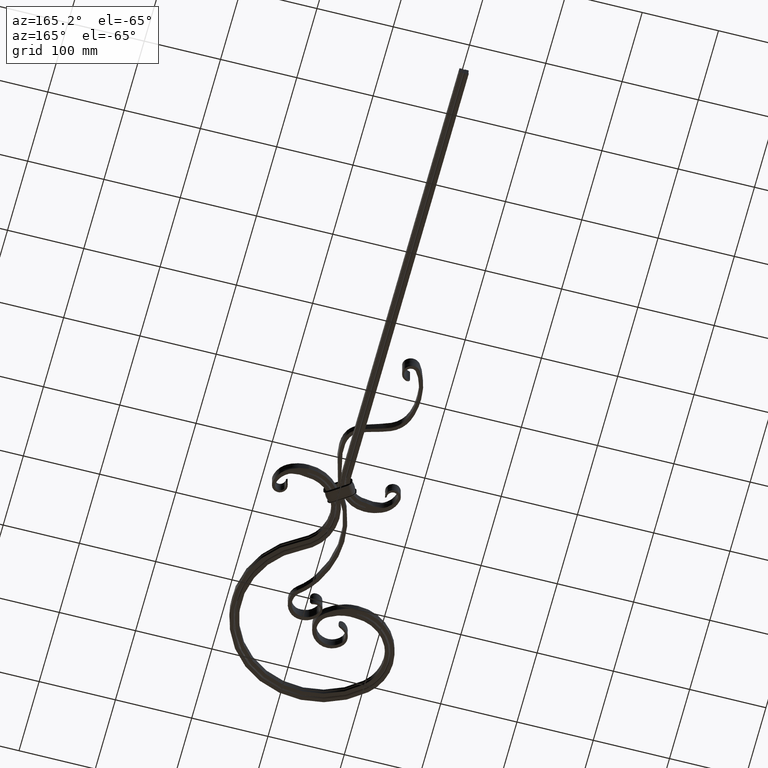
[diagram: clean part render]
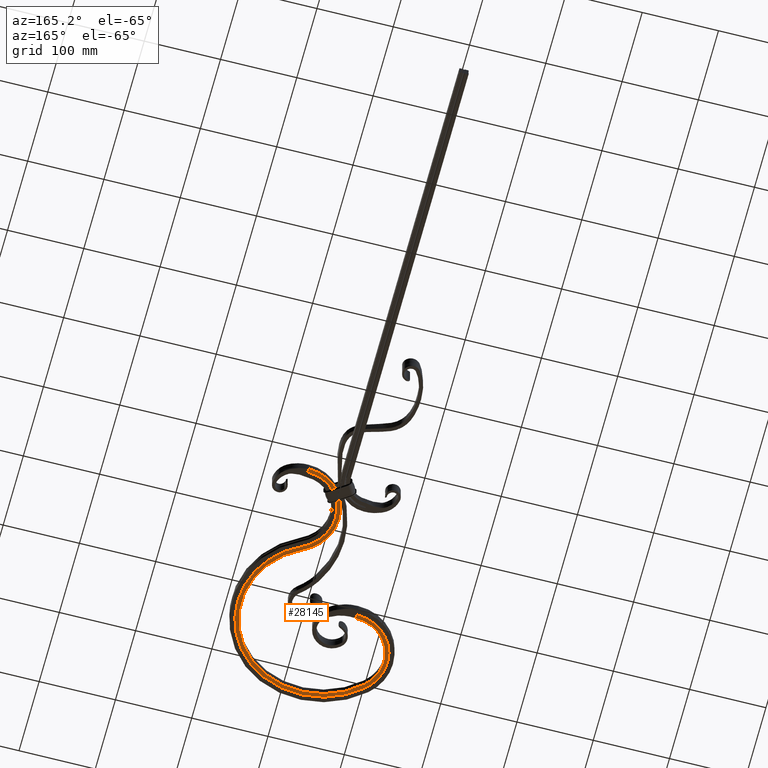
[diagram: same view with one face highlighted and labeled with its STEP entity id]
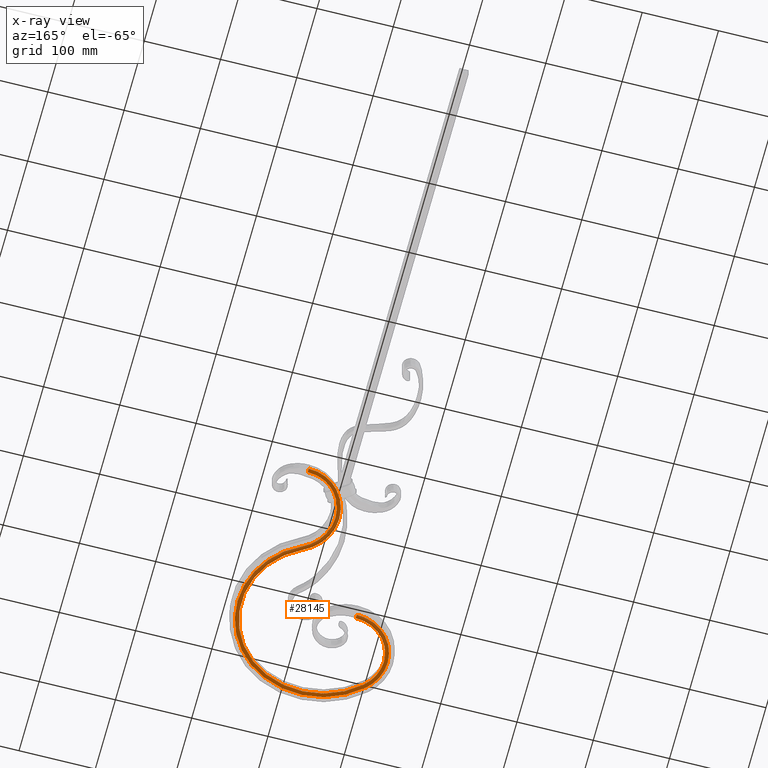
[diagram: x-ray of the same camera — body ghosted, the highlighted face saturated]
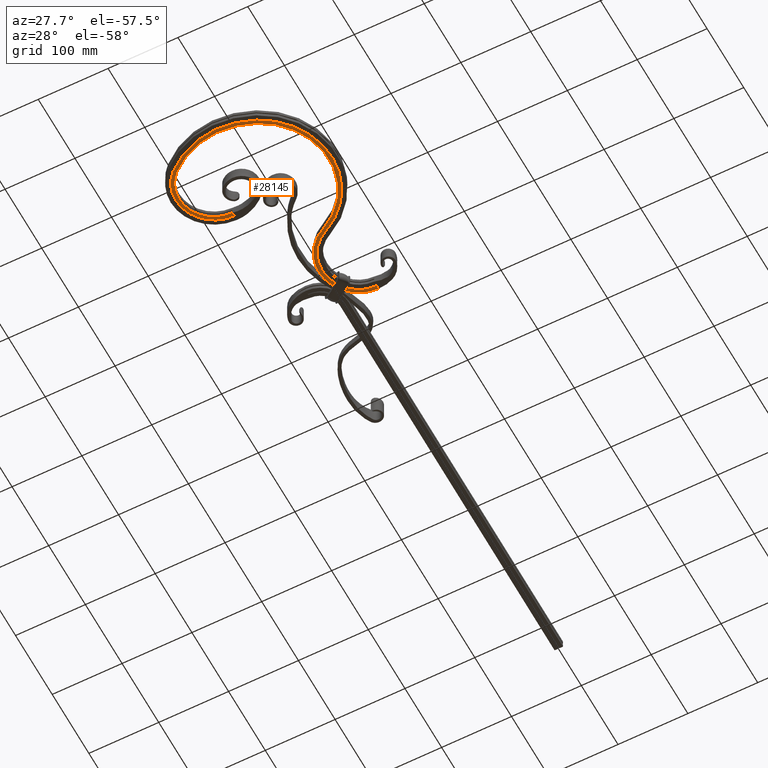
[diagram: same view with one face highlighted and labeled with its STEP entity id]
A machine part, auxiliary view. The second image highlights one B-rep face of the part: STEP entity #28145.
The next image is the same camera in x-ray: the body ghosted, the highlighted face saturated — about 0% of this face is hidden behind the body in this view.
A second angle (auxiliary view) of the same face is appended — the face is thin or edge-on in the first view.
In plain terms, the highlighted planar face has unit normal (-0, 0, 1).
Its self-contained STEP definition (entity closure, byte-faithful):
#234 = DIRECTION ( 'NONE',  ( 0.000000000000000000, -0.000000000000000000, -1.000000000000000000 ) ) ;
#340 = DIRECTION ( 'NONE',  ( 1.000000000000000000, 0.000000000000000000, 0.000000000000000000 ) ) ;
#558 = EDGE_CURVE ( 'NONE', #2505, #20066, #6566, .T. ) ;
#831 = DIRECTION ( 'NONE',  ( 0.4350118277926636190, 0.9004247384876128413, 0.000000000000000000 ) ) ;
#1201 = CARTESIAN_POINT ( 'NONE',  ( -22.00000000000001421, -336.8889783033039294, -6.000000000000006217 ) ) ;
#1334 = CARTESIAN_POINT ( 'NONE',  ( -76.17901016520295343, -317.4302333533296405, -6.000000000000009770 ) ) ;
#1426 = CARTESIAN_POINT ( 'NONE',  ( -122.1768880878726975, -360.7017712460395842, -6.000000000000011546 ) ) ;
#1470 = ORIENTED_EDGE ( 'NONE', *, *, #3871, .T. ) ;
#2169 = CARTESIAN_POINT ( 'NONE',  ( -12.39810755308881696, -192.8210201453269690, -6.000000000000000000 ) ) ;
#2339 = ORIENTED_EDGE ( 'NONE', *, *, #16349, .F. ) ;
#2445 = ORIENTED_EDGE ( 'NONE', *, *, #8813, .F. ) ;
#2505 = VERTEX_POINT ( 'NONE', #28132 ) ;
#2789 = CARTESIAN_POINT ( 'NONE',  ( 35.88586353069722179, -139.9999998709369891, -5.999999999996996181 ) ) ;
#3133 = EDGE_LOOP ( 'NONE', ( #3717, #8479, #2445, #2339, #13646, #1470, #22098, #14038, #15792, #21456, #5052, #6259, #28391, #22457, #11704, #21849 ) ) ;
#3656 = CARTESIAN_POINT ( 'NONE',  ( -122.8588001930210822, -379.1037548057851154, -6.000000000000007994 ) ) ;
#3717 = ORIENTED_EDGE ( 'NONE', *, *, #3812, .T. ) ;
#3757 = VERTEX_POINT ( 'NONE', #5232 ) ;
#3812 = EDGE_CURVE ( 'NONE', #21847, #19378, #25037, .T. ) ;
#3871 = EDGE_CURVE ( 'NONE', #3757, #11295, #12275, .T. ) ;
#4228 = EDGE_CURVE ( 'NONE', #8713, #17803, #12244, .T. ) ;
#4240 = DIRECTION ( 'NONE',  ( 0.000000000000000000, 1.000000000000000000, -0.000000000000000000 ) ) ;
#4281 = CARTESIAN_POINT ( 'NONE',  ( -68.00000000000000000, -372.0000000000000000, -6.000000000000000000 ) ) ;
#4329 = CARTESIAN_POINT ( 'NONE',  ( 42.97590011563531931, 0.000000000000000000, -6.000000000000000000 ) ) ;
#4478 = DIRECTION ( 'NONE',  ( -0.000000000000000000, 0.000000000000000000, 1.000000000000000000 ) ) ;
#4850 = CARTESIAN_POINT ( 'NONE',  ( -68.00000000000000000, 0.000000000000000000, -6.000000000000000000 ) ) ;
#4923 = EDGE_CURVE ( 'NONE', #17803, #6485, #18050, .T. ) ;
#4980 = CARTESIAN_POINT ( 'NONE',  ( 9.704665660723110321, -152.3376639662989760, -6.000000000000006217 ) ) ;
#5052 = ORIENTED_EDGE ( 'NONE', *, *, #22703, .T. ) ;
#5168 = CARTESIAN_POINT ( 'NONE',  ( 5.196962743588439793, -157.7950021464701251, -5.999999999999939604 ) ) ;
#5232 = CARTESIAN_POINT ( 'NONE',  ( 21.79526760047244238, -426.7887810606126209, -6.000000000000000000 ) ) ;
#5524 = LINE ( 'NONE', #4850, #20683 ) ;
#5594 = DIRECTION ( 'NONE',  ( 1.000000000000000000, 0.000000000000000000, 0.000000000000000000 ) ) ;
#5613 = DIRECTION ( 'NONE',  ( 0.000000000000000000, 0.000000000000000000, -1.000000000000000000 ) ) ;
#5658 = CARTESIAN_POINT ( 'NONE',  ( -85.20130050082131845, -319.5371506709003597, -6.000000000000009770 ) ) ;
#5740 = CARTESIAN_POINT ( 'NONE',  ( -120.0958611101603992, -390.6003387499457631, -6.000000000000007994 ) ) ;
#6259 = ORIENTED_EDGE ( 'NONE', *, *, #558, .T. ) ;
#6485 = VERTEX_POINT ( 'NONE', #18387 ) ;
#6566 = CIRCLE ( 'NONE', #13524, 54.99999999999990052 ) ;
#6817 = DIRECTION ( 'NONE',  ( -0.000000000000000000, 0.000000000000000000, 1.000000000000000000 ) ) ;
#6899 = VERTEX_POINT ( 'NONE', #22783 ) ;
#6938 = CIRCLE ( 'NONE', #14083, 105.0000000000001137 ) ;
#7076 = CARTESIAN_POINT ( 'NONE',  ( 47.60189244691120081, -192.8210201453269690, -6.000000000000006217 ) ) ;
#7215 = DIRECTION ( 'NONE',  ( -0.000000000000000000, -0.000000000000000000, 1.000000000000000000 ) ) ;
#7650 = FACE_OUTER_BOUND ( 'NONE', #3133, .T. ) ;
#7852 = CARTESIAN_POINT ( 'NONE',  ( -105.1317808363010329, -412.5737704918450959, -6.000000000000006217 ) ) ;
#8479 = ORIENTED_EDGE ( 'NONE', *, *, #9783, .T. ) ;
#8525 = AXIS2_PLACEMENT_3D ( 'NONE', #14933, #25981, #17517 ) ;
#8582 = DIRECTION ( 'NONE',  ( 0.4350118277926636190, 0.9004247384876128413, 0.000000000000000000 ) ) ;
#8713 = VERTEX_POINT ( 'NONE', #24309 ) ;
#8766 = VERTEX_POINT ( 'NONE', #19930 ) ;
#8813 = EDGE_CURVE ( 'NONE', #10569, #8766, #16893, .T. ) ;
#9177 = AXIS2_PLACEMENT_3D ( 'NONE', #11452, #6817, #24680 ) ;
#9333 = CARTESIAN_POINT ( 'NONE',  ( 42.97590011563531931, -140.0000000000023874, -6.000000000000006217 ) ) ;
#9644 = AXIS2_PLACEMENT_3D ( 'NONE', #26826, #22040, #340 ) ;
#9783 = EDGE_CURVE ( 'NONE', #19378, #8766, #5524, .T. ) ;
#9945 = CIRCLE ( 'NONE', #22190, 54.99999999999990052 ) ;
#10526 = CARTESIAN_POINT ( 'NONE',  ( -26.81747943605198614, -327.0000000000000000, -6.000000000000000000 ) ) ;
#10569 = VERTEX_POINT ( 'NONE', #12265 ) ;
#10851 = CIRCLE ( 'NONE', #27286, 49.99999999999997868 ) ;
#11295 = VERTEX_POINT ( 'NONE', #14212 ) ;
#11452 = CARTESIAN_POINT ( 'NONE',  ( -22.00000000000001421, -336.8889783033039294, -6.000000000000000000 ) ) ;
#11704 = ORIENTED_EDGE ( 'NONE', *, *, #19818, .T. ) ;
#12202 = CARTESIAN_POINT ( 'NONE',  ( -111.9827756404655901, -338.4660586912284543, -6.000000000000014211 ) ) ;
#12244 = LINE ( 'NONE', #4329, #15347 ) ;
#12265 = CARTESIAN_POINT ( 'NONE',  ( -118.0000000000000000, -372.0000000000000000, -6.000000000000000000 ) ) ;
#12275 = CIRCLE ( 'NONE', #9177, 100.0000000000000000 ) ;
#12294 = CARTESIAN_POINT ( 'NONE',  ( -117.8174985304138858, -395.9386045626966393, -6.000000000000007994 ) ) ;
#12385 = CARTESIAN_POINT ( 'NONE',  ( -108.7382808749565015, -409.2732202250547857, -6.000000000000006217 ) ) ;
#12829 = DIRECTION ( 'NONE',  ( 0.000000000000000000, 0.000000000000000000, -1.000000000000000000 ) ) ;
#12862 = EDGE_CURVE ( 'NONE', #20066, #23796, #9945, .T. ) ;
#12907 = CARTESIAN_POINT ( 'NONE',  ( 83.00000000000012790, -336.8889783033039294, -6.000000000000006217 ) ) ;
#13331 = DIRECTION ( 'NONE',  ( -0.000000000000000000, -1.000000000000000000, 0.000000000000000000 ) ) ;
#13520 = DIRECTION ( 'NONE',  ( 1.000000000000000000, 2.220446049250313870E-15, 0.000000000000000000 ) ) ;
#13524 = AXIS2_PLACEMENT_3D ( 'NONE', #7076, #22639, #24849 ) ;
#13646 = ORIENTED_EDGE ( 'NONE', *, *, #23155, .T. ) ;
#14038 = ORIENTED_EDGE ( 'NONE', *, *, #24072, .F. ) ;
#14083 = AXIS2_PLACEMENT_3D ( 'NONE', #1201, #5613, #831 ) ;
#14212 = CARTESIAN_POINT ( 'NONE',  ( 21.50118277931945343, -246.8465044545683611, -6.000000000000000000 ) ) ;
#14504 = CARTESIAN_POINT ( 'NONE',  ( -115.4412155393642507, -343.5091818159084482, -6.000000000000014211 ) ) ;
#14595 = CARTESIAN_POINT ( 'NONE',  ( -120.5407451375222081, -354.6257166448435783, -6.000000000000014211 ) ) ;
#14784 = B_SPLINE_CURVE_WITH_KNOTS ( 'NONE', 3,
 ( #9333, #2789, #20171, #18116, #4980, #5168 ),
 .UNSPECIFIED., .F., .F.,
 ( 4, 2, 4 ),
 ( 0.001559512829263084511, 0.03389171563766424367, 0.06622391844606538569 ),
 .UNSPECIFIED. ) ;
#14823 = AXIS2_PLACEMENT_3D ( 'NONE', #19646, #12829, #8582 ) ;
#14933 = CARTESIAN_POINT ( 'NONE',  ( 47.60189244691120081, -192.8210201453269690, -6.000000000000000000 ) ) ;
#15347 = VECTOR ( 'NONE', #4240, 1000.000000000000000 ) ;
#15709 = CARTESIAN_POINT ( 'NONE',  ( -68.00000000000000000, -372.0000000000000000, -6.000000000000000000 ) ) ;
#15792 = ORIENTED_EDGE ( 'NONE', *, *, #4923, .F. ) ;
#16349 = EDGE_CURVE ( 'NONE', #22469, #10569, #10851, .T. ) ;
#16503 = CIRCLE ( 'NONE', #19485, 60.00000000000002132 ) ;
#16775 = CARTESIAN_POINT ( 'NONE',  ( -71.96608486154262607, -317.0054324365215734, -5.999999999995213606 ) ) ;
#16893 = CIRCLE ( 'NONE', #24881, 49.99999999999997868 ) ;
#17517 = DIRECTION ( 'NONE',  ( 1.000000000000000000, 0.000000000000000000, 0.000000000000000000 ) ) ;
#17614 = CARTESIAN_POINT ( 'NONE',  ( 47.60189244691120081, -192.8210201453269690, -6.000000000000000000 ) ) ;
#17803 = VERTEX_POINT ( 'NONE', #27703 ) ;
#17991 = EDGE_CURVE ( 'NONE', #27015, #11295, #22473, .T. ) ;
#18050 = CIRCLE ( 'NONE', #20980, 54.00000000000002132 ) ;
#18116 = CARTESIAN_POINT ( 'NONE',  ( 15.52974485922413095, -147.7656523697293380, -6.000000000000005329 ) ) ;
#18387 = CARTESIAN_POINT ( 'NONE',  ( 1.341969134152388943, -154.6108186920805565, -6.000000000000000000 ) ) ;
#18609 = CIRCLE ( 'NONE', #20562, 111.0000000000000142 ) ;
#18908 = CARTESIAN_POINT ( 'NONE',  ( -112.1355402845707374, -405.2700180166838777, -6.000000000000007994 ) ) ;
#19002 = CARTESIAN_POINT ( 'NONE',  ( -68.00000000000000000, -317.0008304806398769, -5.999999999998443023 ) ) ;
#19125 = DIRECTION ( 'NONE',  ( 1.000000000000000000, 0.000000000000000000, 0.000000000000000000 ) ) ;
#19279 = CIRCLE ( 'NONE', #14823, 105.0000000000001137 ) ;
#19378 = VERTEX_POINT ( 'NONE', #25220 ) ;
#19407 = CARTESIAN_POINT ( 'NONE',  ( 23.67624191822971014, -242.3443807621045210, -6.000000000000006217 ) ) ;
#19485 = AXIS2_PLACEMENT_3D ( 'NONE', #17614, #4478, #26176 ) ;
#19646 = CARTESIAN_POINT ( 'NONE',  ( -22.00000000000001421, -336.8889783033039294, -6.000000000000006217 ) ) ;
#19652 = DIRECTION ( 'NONE',  ( 1.000000000000000000, 0.000000000000000000, 0.000000000000000000 ) ) ;
#19763 = CARTESIAN_POINT ( 'NONE',  ( -7.398107553088693500, -192.8210201453269690, -6.000000000000006217 ) ) ;
#19818 = EDGE_CURVE ( 'NONE', #24331, #6899, #6938, .T. ) ;
#19930 = CARTESIAN_POINT ( 'NONE',  ( -68.00000000000000000, -322.0000000000000000, -5.999999999997396749 ) ) ;
#20066 = VERTEX_POINT ( 'NONE', #19763 ) ;
#20171 = CARTESIAN_POINT ( 'NONE',  ( 28.64634451238888246, -141.5845310361599445, -6.000000000000005329 ) ) ;
#20205 = CARTESIAN_POINT ( 'NONE',  ( -101.7561643966787557, -408.8852459016393368, -6.000000000000000000 ) ) ;
#20410 = CARTESIAN_POINT ( 'NONE',  ( 47.60189244691120081, -192.8210201453269690, -6.000000000000006217 ) ) ;
#20562 = AXIS2_PLACEMENT_3D ( 'NONE', #10526, #27682, #19125 ) ;
#20683 = VECTOR ( 'NONE', #13331, 1000.000000000000000 ) ;
#20980 = AXIS2_PLACEMENT_3D ( 'NONE', #27490, #25638, #5594 ) ;
#21456 = ORIENTED_EDGE ( 'NONE', *, *, #4228, .F. ) ;
#21463 = EDGE_CURVE ( 'NONE', #23796, #24331, #19279, .T. ) ;
#21847 = VERTEX_POINT ( 'NONE', #27842 ) ;
#21849 = ORIENTED_EDGE ( 'NONE', *, *, #27053, .T. ) ;
#22040 = DIRECTION ( 'NONE',  ( -0.000000000000000000, 0.000000000000000000, 1.000000000000000000 ) ) ;
#22098 = ORIENTED_EDGE ( 'NONE', *, *, #17991, .F. ) ;
#22190 = AXIS2_PLACEMENT_3D ( 'NONE', #20410, #7215, #22772 ) ;
#22205 = CARTESIAN_POINT ( 'NONE',  ( -26.81747943605198614, -327.0000000000000000, -6.000000000000006217 ) ) ;
#22457 = ORIENTED_EDGE ( 'NONE', *, *, #21463, .T. ) ;
#22469 = VERTEX_POINT ( 'NONE', #20205 ) ;
#22473 = CIRCLE ( 'NONE', #8525, 60.00000000000002132 ) ;
#22639 = DIRECTION ( 'NONE',  ( -0.000000000000000000, -0.000000000000000000, 1.000000000000000000 ) ) ;
#22703 = EDGE_CURVE ( 'NONE', #8713, #2505, #14784, .T. ) ;
#22772 = DIRECTION ( 'NONE',  ( -0.7709987218785970819, 0.6368366908883075217, 0.000000000000000000 ) ) ;
#22783 = CARTESIAN_POINT ( 'NONE',  ( 23.98503098055180516, -431.2837711984510634, -6.000000000000006217 ) ) ;
#23155 = EDGE_CURVE ( 'NONE', #22469, #3757, #18609, .T. ) ;
#23222 = CARTESIAN_POINT ( 'NONE',  ( -99.42590342636999878, -326.5440137566789645, -6.000000000000011546 ) ) ;
#23767 = PLANE ( 'NONE',  #9644 ) ;
#23796 = VERTEX_POINT ( 'NONE', #19407 ) ;
#24072 = EDGE_CURVE ( 'NONE', #6485, #27015, #16503, .T. ) ;
#24309 = CARTESIAN_POINT ( 'NONE',  ( 42.97590011563531931, -140.0000000000023874, -6.000000000000006217 ) ) ;
#24311 = DIRECTION ( 'NONE',  ( 0.4379526760052043777, -0.8989980275728531867, 0.000000000000000000 ) ) ;
#24331 = VERTEX_POINT ( 'NONE', #12907 ) ;
#24401 = DIRECTION ( 'NONE',  ( 0.000000000000000000, 0.000000000000000000, -1.000000000000000000 ) ) ;
#24431 = DIRECTION ( 'NONE',  ( 0.000000000000000000, -0.000000000000000000, -1.000000000000000000 ) ) ;
#24680 = DIRECTION ( 'NONE',  ( 1.000000000000000000, 0.000000000000000000, 0.000000000000000000 ) ) ;
#24849 = DIRECTION ( 'NONE',  ( -0.7709987218785970819, 0.6368366908883075217, 0.000000000000000000 ) ) ;
#24881 = AXIS2_PLACEMENT_3D ( 'NONE', #4281, #234, #19652 ) ;
#25037 = B_SPLINE_CURVE_WITH_KNOTS ( 'NONE', 3,
 ( #7852, #12385, #18908, #12294, #5740, #3656, #27653, #1426, #14595, #14504, #12202, #25521, #23222, #27743, #5658, #1334, #16775, #19002 ),
 .UNSPECIFIED., .F., .F.,
 ( 4, 2, 2, 2, 2, 2, 2, 2, 4 ),
 ( 0.7927548289841417350, 0.8186604753611239627, 0.8445661217381063013, 0.8704717681150886399, 0.8963774144920708675, 0.9222830608690530951, 0.9481887072460354338, 0.9740943536230177724, 0.9979815906751270393 ),
 .UNSPECIFIED. ) ;
#25220 = CARTESIAN_POINT ( 'NONE',  ( -68.00000000000000000, -317.0008304806398769, -5.999999999998443023 ) ) ;
#25346 = CIRCLE ( 'NONE', #27992, 116.0000000000000995 ) ;
#25521 = CARTESIAN_POINT ( 'NONE',  ( -103.9724651737205932, -329.9881971113289296, -6.000000000000014211 ) ) ;
#25638 = DIRECTION ( 'NONE',  ( -0.000000000000000000, 0.000000000000000000, 1.000000000000000000 ) ) ;
#25981 = DIRECTION ( 'NONE',  ( -0.000000000000000000, 0.000000000000000000, 1.000000000000000000 ) ) ;
#26176 = DIRECTION ( 'NONE',  ( 1.000000000000000000, 0.000000000000000000, 0.000000000000000000 ) ) ;
#26826 = CARTESIAN_POINT ( 'NONE',  ( 0.000000000000000000, 0.000000000000000000, -6.000000000000000000 ) ) ;
#27015 = VERTEX_POINT ( 'NONE', #2169 ) ;
#27053 = EDGE_CURVE ( 'NONE', #6899, #21847, #25346, .T. ) ;
#27286 = AXIS2_PLACEMENT_3D ( 'NONE', #15709, #24431, #13520 ) ;
#27490 = CARTESIAN_POINT ( 'NONE',  ( 42.97590011563531931, -189.0000000000023306, -6.000000000000000000 ) ) ;
#27653 = CARTESIAN_POINT ( 'NONE',  ( -123.3344336706016549, -372.9410859668827243, -6.000000000000011546 ) ) ;
#27682 = DIRECTION ( 'NONE',  ( -0.000000000000000000, 0.000000000000000000, 1.000000000000000000 ) ) ;
#27703 = CARTESIAN_POINT ( 'NONE',  ( 42.97590011563531931, -135.0000000000023306, -6.000000000000000000 ) ) ;
#27743 = CARTESIAN_POINT ( 'NONE',  ( -90.04037932766325980, -321.3240112897930203, -6.000000000000011546 ) ) ;
#27842 = CARTESIAN_POINT ( 'NONE',  ( -105.1317808363010329, -412.5737704918450959, -6.000000000000006217 ) ) ;
#27992 = AXIS2_PLACEMENT_3D ( 'NONE', #22205, #24401, #24311 ) ;
#28132 = CARTESIAN_POINT ( 'NONE',  ( 5.196962743588439793, -157.7950021464701251, -5.999999999999939604 ) ) ;
#28145 = ADVANCED_FACE ( 'NONE', ( #7650 ), #23767, .F. ) ;
#28391 = ORIENTED_EDGE ( 'NONE', *, *, #12862, .T. ) ;